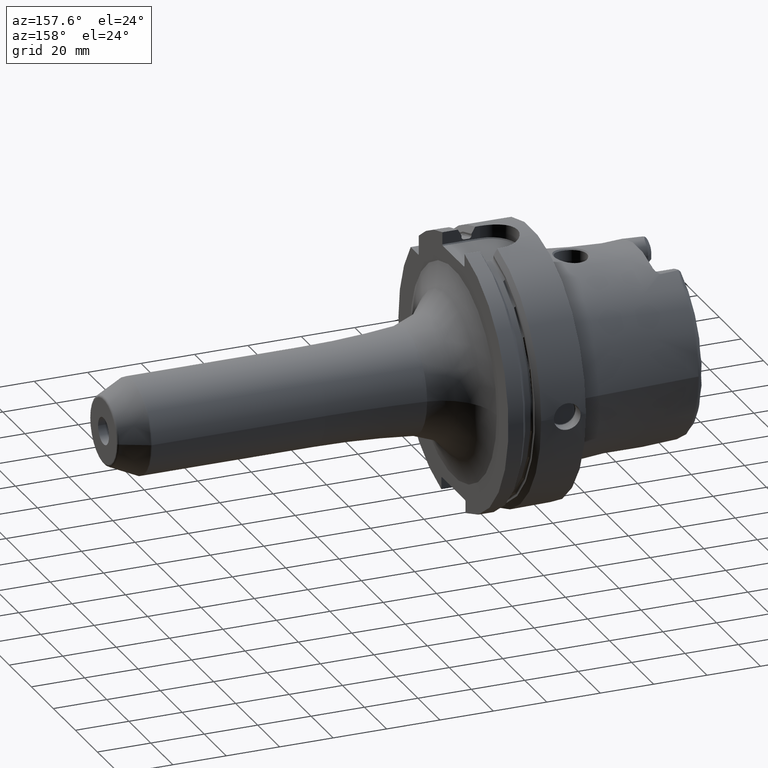
[diagram: clean part render]
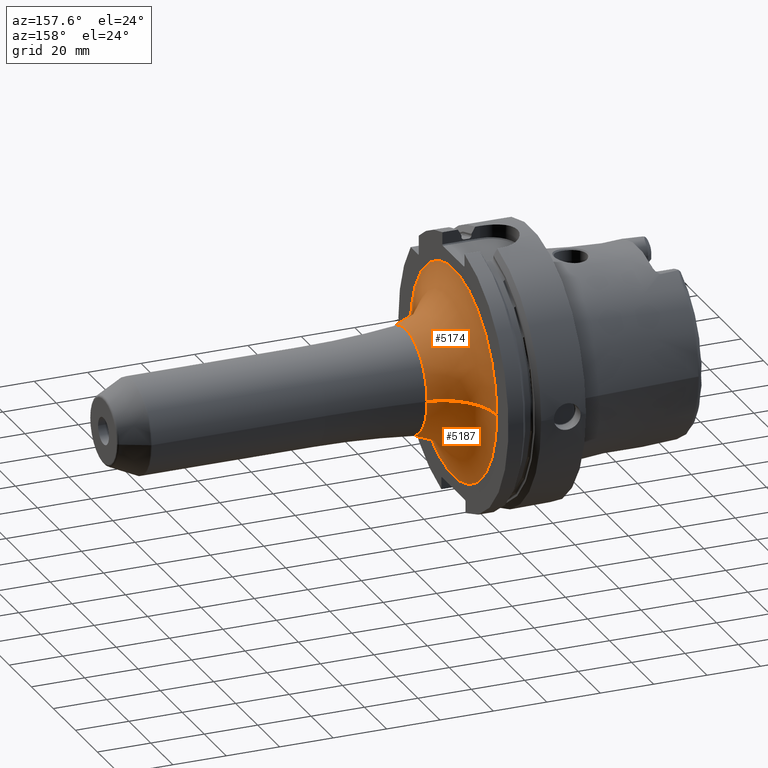
[diagram: same view with one multi-face feature highlighted, each face labeled with its STEP entity id]
A machine part, auxiliary view. The highlighted faces form ONE feature: a constant-radius fillet chain: 2 tangent blend faces with common blend radius 20 mm. The faces share edges in the B-rep.
Their STEP definitions:
[1] entity #5187 (Torus):
#1096=CARTESIAN_POINT('',(2.9E1,0.E0,0.E0));
#1097=DIRECTION('',(1.E0,0.E0,0.E0));
#1098=DIRECTION('',(0.E0,-1.E0,0.E0));
#1099=AXIS2_PLACEMENT_3D('',#1096,#1097,#1098);
#1810=CARTESIAN_POINT('',(4.9E1,3.936130980940E1,-1.297212337548E-12));
#1811=DIRECTION('',(0.E0,3.295714395835E-14,1.E0));
#1812=DIRECTION('',(-1.E0,0.E0,0.E0));
#1813=AXIS2_PLACEMENT_3D('',#1810,#1811,#1812);
#1815=CARTESIAN_POINT('',(4.9E1,-3.936130980940E1,1.283612105496E-12));
#1816=DIRECTION('',(0.E0,-3.261193398663E-14,-1.E0));
#1817=DIRECTION('',(-1.E0,0.E0,0.E0));
#1818=AXIS2_PLACEMENT_3D('',#1815,#1816,#1817);
#1820=CARTESIAN_POINT('',(4.687878787879E1,0.E0,0.E0));
#1821=DIRECTION('',(1.E0,0.E0,0.E0));
#1822=DIRECTION('',(0.E0,-1.E0,0.E0));
#1823=AXIS2_PLACEMENT_3D('',#1820,#1821,#1822);
#3335=CARTESIAN_POINT('',(2.9E1,3.936130980940E1,3.675365357729E-13));
#3336=CARTESIAN_POINT('',(2.9E1,-3.936130980940E1,-3.627161655660E-13));
#3337=VERTEX_POINT('',#3335);
#3338=VERTEX_POINT('',#3336);
#3339=CARTESIAN_POINT('',(4.687878787879E1,1.947411646452E1,0.E0));
#3340=CARTESIAN_POINT('',(4.687878787879E1,-1.947411646452E1,0.E0));
#3341=VERTEX_POINT('',#3339);
#3342=VERTEX_POINT('',#3340);
#5175=CARTESIAN_POINT('',(4.9E1,0.E0,0.E0));
#5176=DIRECTION('',(1.E0,0.E0,0.E0));
#5177=DIRECTION('',(0.E0,-9.999914466069E-1,4.136026245168E-3));
#5178=AXIS2_PLACEMENT_3D('',#5175,#5176,#5177);
#5179=TOROIDAL_SURFACE('',#5178,3.936130980940E1,2.E1);
#5180=ORIENTED_EDGE('',*,*,#4442,.F.);
#5181=ORIENTED_EDGE('',*,*,#5170,.T.);
#5183=ORIENTED_EDGE('',*,*,#5182,.T.);
#5184=ORIENTED_EDGE('',*,*,#5166,.F.);
#5185=EDGE_LOOP('',(#5180,#5181,#5183,#5184));
#5186=FACE_OUTER_BOUND('',#5185,.F.);
#5187=ADVANCED_FACE('',(#5186),#5179,.F.);
#1100=CIRCLE('',#1099,3.936130980940E1);
#1814=CIRCLE('',#1813,2.E1);
#1819=CIRCLE('',#1818,2.E1);
#1824=CIRCLE('',#1823,1.947411646452E1);
#4442=EDGE_CURVE('',#3338,#3337,#1100,.T.);
#5166=EDGE_CURVE('',#3337,#3341,#1814,.T.);
#5170=EDGE_CURVE('',#3338,#3342,#1819,.T.);
#5182=EDGE_CURVE('',#3342,#3341,#1824,.T.);
[2] entity #5174 (Torus):
#1091=CARTESIAN_POINT('',(2.9E1,0.E0,0.E0));
#1092=DIRECTION('',(1.E0,0.E0,0.E0));
#1093=DIRECTION('',(0.E0,1.E0,0.E0));
#1094=AXIS2_PLACEMENT_3D('',#1091,#1092,#1093);
#1810=CARTESIAN_POINT('',(4.9E1,3.936130980940E1,-1.297212337548E-12));
#1811=DIRECTION('',(0.E0,3.295714395835E-14,1.E0));
#1812=DIRECTION('',(-1.E0,0.E0,0.E0));
#1813=AXIS2_PLACEMENT_3D('',#1810,#1811,#1812);
#1815=CARTESIAN_POINT('',(4.9E1,-3.936130980940E1,1.283612105496E-12));
#1816=DIRECTION('',(0.E0,-3.261193398663E-14,-1.E0));
#1817=DIRECTION('',(-1.E0,0.E0,0.E0));
#1818=AXIS2_PLACEMENT_3D('',#1815,#1816,#1817);
#1825=CARTESIAN_POINT('',(4.687878787879E1,0.E0,0.E0));
#1826=DIRECTION('',(1.E0,0.E0,0.E0));
#1827=DIRECTION('',(0.E0,1.E0,0.E0));
#1828=AXIS2_PLACEMENT_3D('',#1825,#1826,#1827);
#3335=CARTESIAN_POINT('',(2.9E1,3.936130980940E1,3.675365357729E-13));
#3336=CARTESIAN_POINT('',(2.9E1,-3.936130980940E1,-3.627161655660E-13));
#3337=VERTEX_POINT('',#3335);
#3338=VERTEX_POINT('',#3336);
#3339=CARTESIAN_POINT('',(4.687878787879E1,1.947411646452E1,0.E0));
#3340=CARTESIAN_POINT('',(4.687878787879E1,-1.947411646452E1,0.E0));
#3341=VERTEX_POINT('',#3339);
#3342=VERTEX_POINT('',#3340);
#5160=CARTESIAN_POINT('',(4.9E1,0.E0,0.E0));
#5161=DIRECTION('',(1.E0,0.E0,0.E0));
#5162=DIRECTION('',(0.E0,9.999914466069E-1,-4.136026245168E-3));
#5163=AXIS2_PLACEMENT_3D('',#5160,#5161,#5162);
#5164=TOROIDAL_SURFACE('',#5163,3.936130980940E1,2.E1);
#5165=ORIENTED_EDGE('',*,*,#4440,.F.);
#5167=ORIENTED_EDGE('',*,*,#5166,.T.);
#5169=ORIENTED_EDGE('',*,*,#5168,.T.);
#5171=ORIENTED_EDGE('',*,*,#5170,.F.);
#5172=EDGE_LOOP('',(#5165,#5167,#5169,#5171));
#5173=FACE_OUTER_BOUND('',#5172,.F.);
#5174=ADVANCED_FACE('',(#5173),#5164,.F.);
#1095=CIRCLE('',#1094,3.936130980940E1);
#1814=CIRCLE('',#1813,2.E1);
#1819=CIRCLE('',#1818,2.E1);
#1829=CIRCLE('',#1828,1.947411646452E1);
#4440=EDGE_CURVE('',#3337,#3338,#1095,.T.);
#5166=EDGE_CURVE('',#3337,#3341,#1814,.T.);
#5168=EDGE_CURVE('',#3341,#3342,#1829,.T.);
#5170=EDGE_CURVE('',#3338,#3342,#1819,.T.);